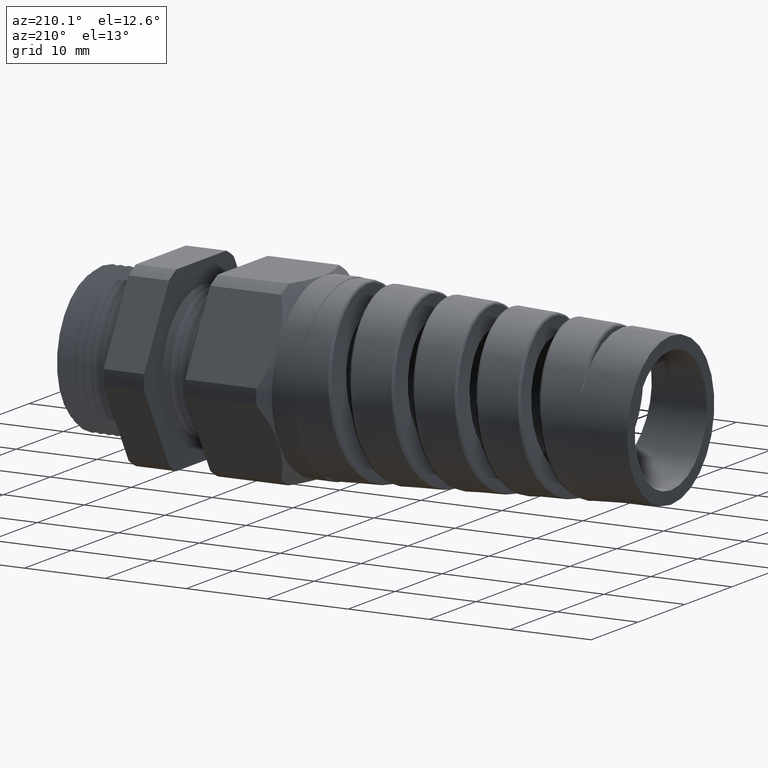
[diagram: clean part render]
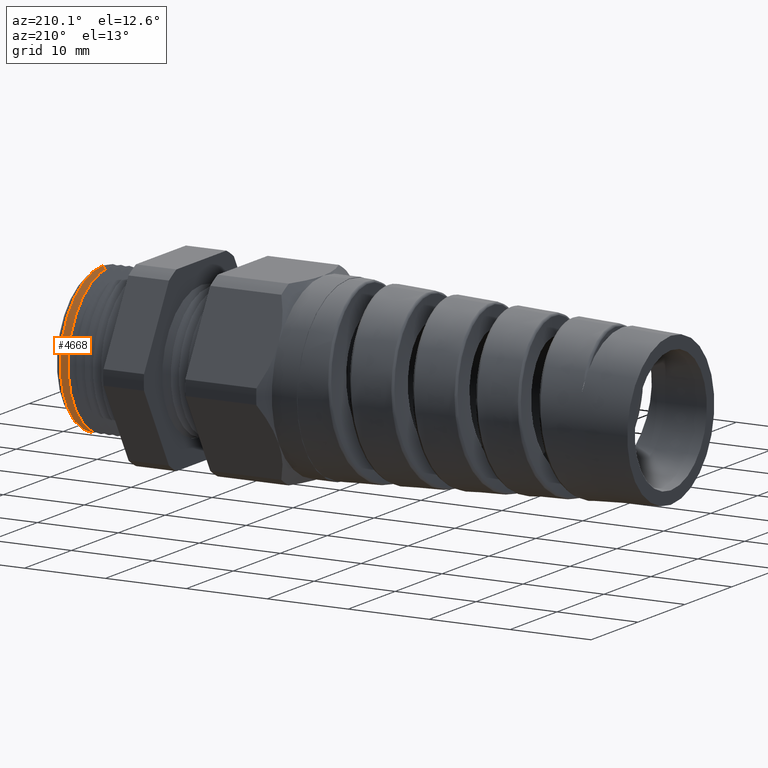
[diagram: same view with one face highlighted and labeled with its STEP entity id]
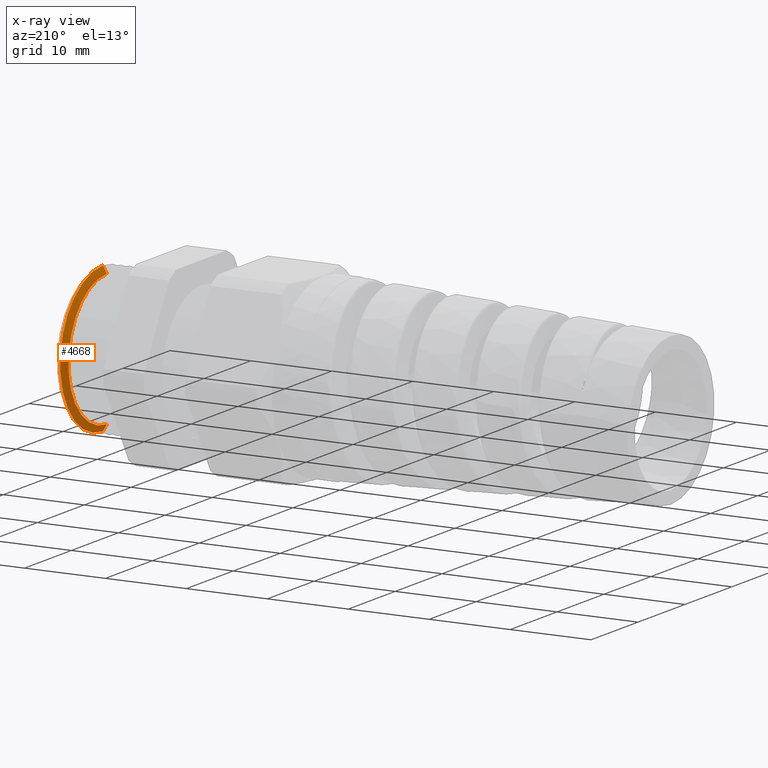
[diagram: x-ray of the same camera — body ghosted, the highlighted face saturated]
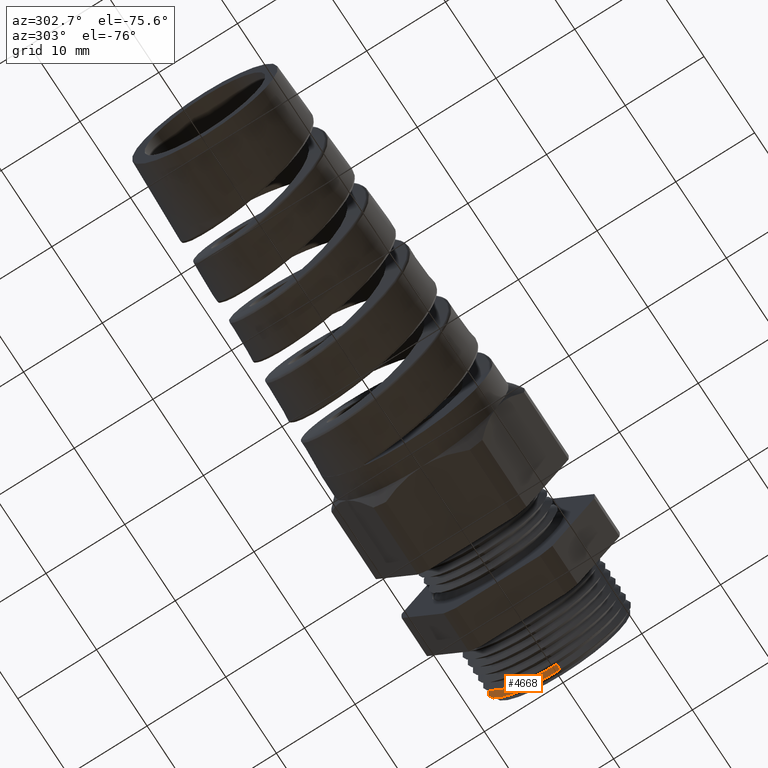
[diagram: same view with one face highlighted and labeled with its STEP entity id]
A machine part, auxiliary view. The second image highlights one B-rep face of the part: STEP entity #4668.
The next image is the same camera in x-ray: the body ghosted, the highlighted face saturated — about 0% of this face is hidden behind the body in this view.
A second angle (auxiliary view) of the same face is appended — the face is thin or edge-on in the first view.
In plain terms, the highlighted conical surface has half-angle 58.5 deg.
Its self-contained STEP definition (entity closure, byte-faithful):
#4668 = ADVANCED_FACE ( 'NONE', ( #5417 ), #5416, .T. ) ;
#4669 = EDGE_LOOP ( 'NONE', ( #4670, #4686, #4689, #4692 ) ) ;
#4670 = ORIENTED_EDGE ( 'NONE', *, *, #4671, .T. ) ;
#4671 = EDGE_CURVE ( 'NONE', #4684, #4685, #5411, .T. ) ;
#4684 = VERTEX_POINT ( 'NONE', #5381 ) ;
#4685 = VERTEX_POINT ( 'NONE', #5380 ) ;
#4686 = ORIENTED_EDGE ( 'NONE', *, *, #4687, .T. ) ;
#4687 = EDGE_CURVE ( 'NONE', #4685, #4688, #5379, .T. ) ;
#4688 = VERTEX_POINT ( 'NONE', #5375 ) ;
#4689 = ORIENTED_EDGE ( 'NONE', *, *, #4690, .T. ) ;
#4690 = EDGE_CURVE ( 'NONE', #4688, #4691, #5374, .T. ) ;
#4691 = VERTEX_POINT ( 'NONE', #5369 ) ;
#4692 = ORIENTED_EDGE ( 'NONE', *, *, #4756, .F. ) ;
#4756 = EDGE_CURVE ( 'NONE', #4684, #4691, #6267, .T. ) ;
#5369 = CARTESIAN_POINT ( 'NONE',  ( -0.02761820318670896200, 4.379405196166133400E-017, -0.3576055724160832600 ) ) ;
#5370 = DIRECTION ( 'NONE',  ( 0.0000000000000000000, 0.0000000000000000000, -1.000000000000000000 ) ) ;
#5371 = DIRECTION ( 'NONE',  ( -1.000000000000000000, 0.0000000000000000000, 0.0000000000000000000 ) ) ;
#5372 = CARTESIAN_POINT ( 'NONE',  ( -0.02761820318670896200, 0.0000000000000000000, 0.0000000000000000000 ) ) ;
#5373 = AXIS2_PLACEMENT_3D ( 'NONE', #5372, #5371, #5370 ) ;
#5374 = CIRCLE ( 'NONE', #5373, 0.3576055724160832600 ) ;
#5375 = CARTESIAN_POINT ( 'NONE',  ( -0.02761820318670896200, 0.0000000000000000000, 0.3576055724160832600 ) ) ;
#5376 = DIRECTION ( 'NONE',  ( 0.5224985647159468000, 1.044183048100713800E-016, 0.8526401643540935100 ) ) ;
#5377 = VECTOR ( 'NONE', #5376, 39.37007874015748100 ) ;
#5378 = CARTESIAN_POINT ( 'NONE',  ( -0.04796098090543434600, 3.972866593390776800E-017, 0.3244091762748934100 ) ) ;
#5379 = LINE ( 'NONE', #5378, #5377 ) ;
#5380 = CARTESIAN_POINT ( 'NONE',  ( -0.04796098090543434600, 0.0000000000000000000, 0.3244091762748934100 ) ) ;
#5381 = CARTESIAN_POINT ( 'NONE',  ( -0.04796098090543434600, 4.182376475761444500E-017, -0.3244091762748934100 ) ) ;
#5407 = DIRECTION ( 'NONE',  ( 0.0000000000000000000, 0.0000000000000000000, -1.000000000000000000 ) ) ;
#5408 = DIRECTION ( 'NONE',  ( 1.000000000000000000, 0.0000000000000000000, 0.0000000000000000000 ) ) ;
#5409 = CARTESIAN_POINT ( 'NONE',  ( -0.04796098090543434600, 0.0000000000000000000, 0.0000000000000000000 ) ) ;
#5410 = AXIS2_PLACEMENT_3D ( 'NONE', #5409, #5408, #5407 ) ;
#5411 = CIRCLE ( 'NONE', #5410, 0.3244091762748934100 ) ;
#5412 = DIRECTION ( 'NONE',  ( 0.0000000000000000000, 0.0000000000000000000, -1.000000000000000000 ) ) ;
#5413 = DIRECTION ( 'NONE',  ( 1.000000000000000000, 0.0000000000000000000, 0.0000000000000000000 ) ) ;
#5414 = CARTESIAN_POINT ( 'NONE',  ( -0.04796098090543434600, 0.0000000000000000000, 0.0000000000000000000 ) ) ;
#5415 = AXIS2_PLACEMENT_3D ( 'NONE', #5414, #5413, #5412 ) ;
#5416 = CONICAL_SURFACE ( 'NONE', #5415, 0.3244091762748934100, 1.021017612416685200 ) ;
#5417 = FACE_OUTER_BOUND ( 'NONE', #4669, .T. ) ;
#6264 = DIRECTION ( 'NONE',  ( 0.5224985647159468000, 0.0000000000000000000, -0.8526401643540935100 ) ) ;
#6265 = VECTOR ( 'NONE', #6264, 39.37007874015748100 ) ;
#6266 = CARTESIAN_POINT ( 'NONE',  ( -0.04796098090543434600, 0.0000000000000000000, -0.3244091762748934100 ) ) ;
#6267 = LINE ( 'NONE', #6266, #6265 ) ;